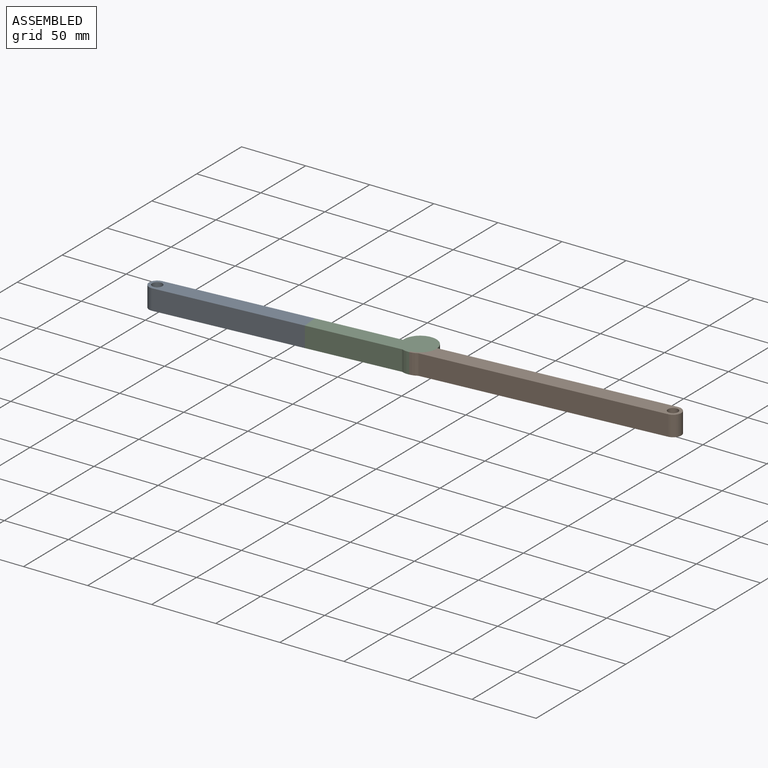
[diagram: assembled view]
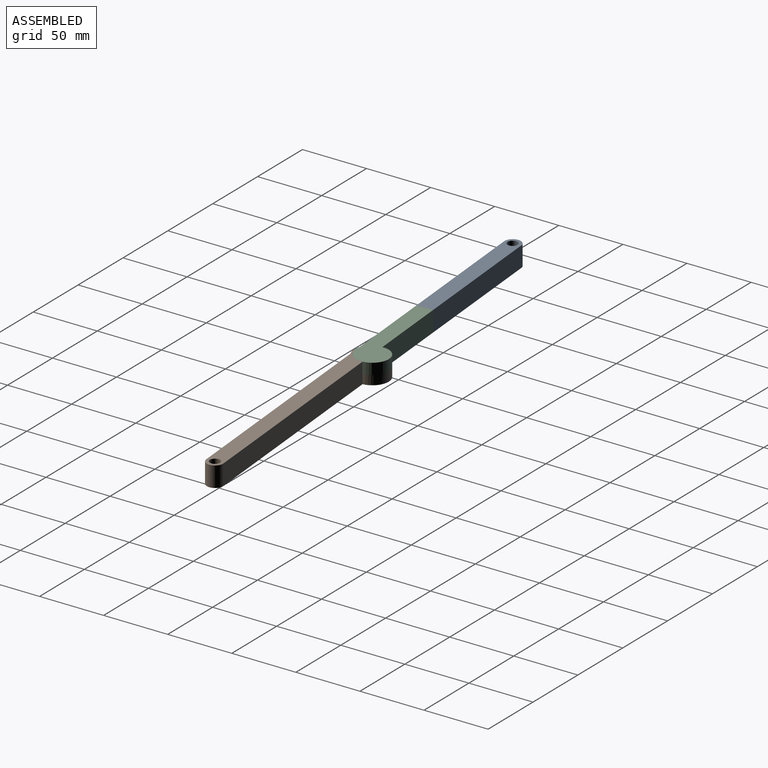
[diagram: assembled view, second angle]
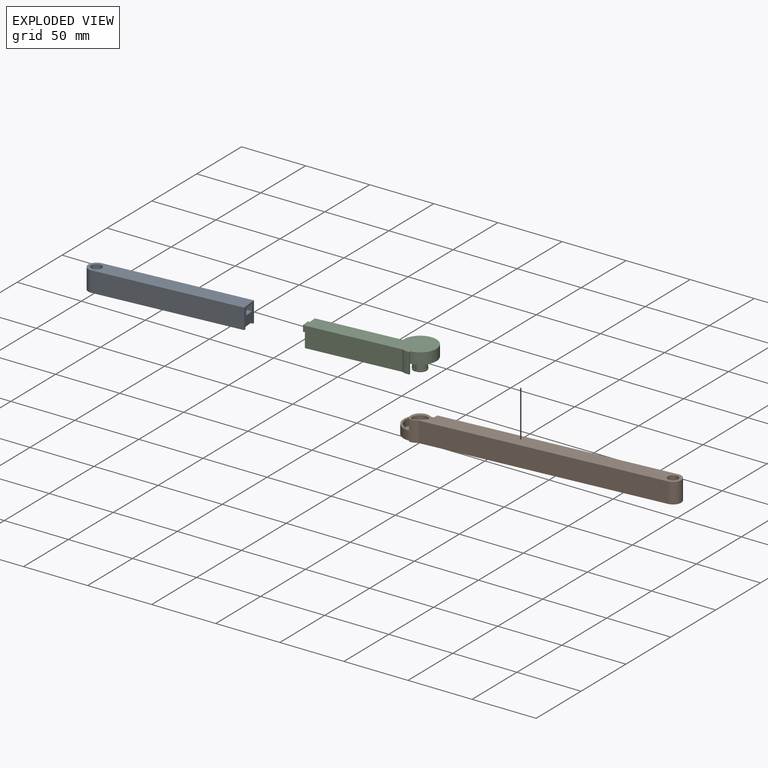
[diagram: exploded view]
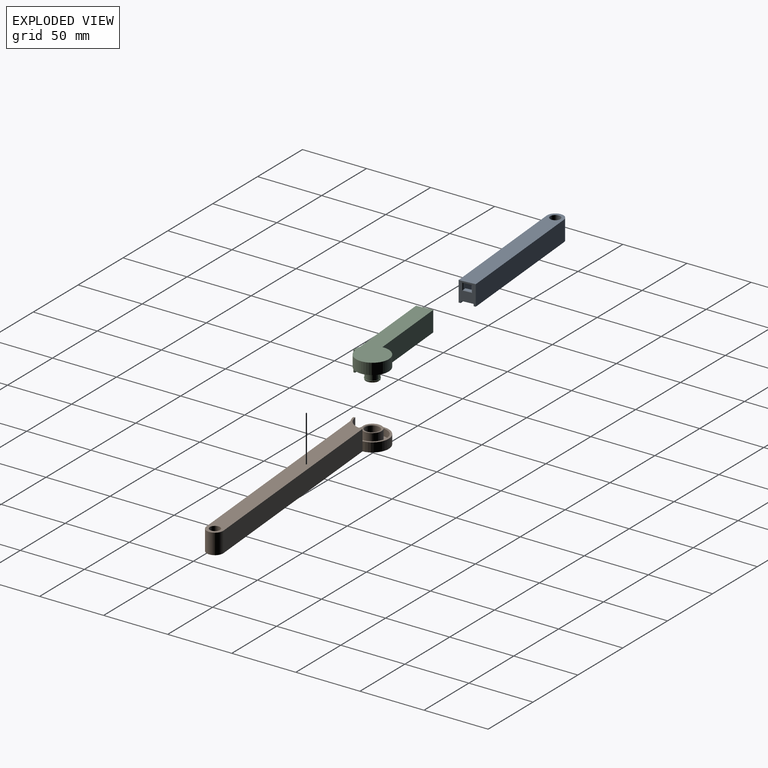
[diagram: exploded view, second angle]
ASSEMBLY  parts=3 mates=2
PART A: 33 faces, bbox 118.9x12.7x15.9 mm
  f0: plane 12.7x9.53mm, normal (1,0,0), area 90.7mm2, adj f1,f2,f19,f20,f26,f27,f28
  f1: plane 9.53x3.18mm, normal (0,0,-1), area 30.2mm2, adj f0,f2,f20,f25
  f2: plane 33.52x14.29mm, normal (0,1,0), area 438.6mm2, adj f0,f1,f18,f19,f24,f25
  f3: plane 7.94x7.94mm, normal (0,0,-1), area 49.5mm2, adj f4
  f4: cylinder r=3.97mm len=13.49mm, axis (0,0,-1), area 336.5mm2, adj f3,f11
  f5: plane 12.7x9.53mm, normal (1,0,0), area 121mm2, adj f8,f9,f12,f14
  f6: plane 33.78x9.53mm, normal (0,0,-1), area 303.6mm2, adj f7,f12,f13,f14
  f7: plane 12.7x9.53mm, normal (-1,0,0), area 121mm2, adj f6,f8,f12,f14
  f8: plane 9.53x1.6mm, normal (0,0,-1), area 15.2mm2, adj f5,f7,f12,f14
  f9: plane 33.76x9.53mm, normal (0,0,-1), area 307.4mm2, adj f5,f12,f14,f15
  f10: torus R=4.76mm, axis (0,0,1), area 33.4mm2, adj f16,f24
  f11: torus R=4.76mm, axis (0,0,1), area 33.4mm2, adj f4,f24
  f12: plane 69.14x14.29mm, normal (0,1,0), area 967.5mm2, adj f5,f6,f7,f8,f9,f13,f15,f24
  f13: cylinder r=5.56mm len=14.29mm, axis (0,0,-1), area 163.5mm2, adj f6,f12,f14,f24
  f14: plane 69.14x14.29mm, normal (0,-1,0), area 967.5mm2, adj f5,f6,f7,f8,f9,f13,f15,f24
  f15: cylinder r=6.35mm len=14.29mm, axis (0,0,-1), area 153.9mm2, adj f9,f12,f14,f24
  f16: cylinder r=3.97mm len=15.08mm, axis (0,0,-1), area 376.1mm2, adj f10,f21
  f17: cylinder r=6.35mm len=15.88mm, axis (0,0,-1), area 316.7mm2, adj f21,f22,f23,f24
  f18: cylinder r=5.56mm len=14.29mm, axis (0,0,-1), area 163.5mm2, adj f2,f19,f20,f24
  f19: plane 33.12x9.53mm, normal (0,0,-1), area 288.5mm2, adj f0,f2,f18,f20,f26,f28,f31
  f20: plane 33.52x14.29mm, normal (0,-1,0), area 438.6mm2, adj f0,f1,f18,f19,f24,f25
  f21: plane 118.93x12.7mm, normal (0,0,1), area 1443.6mm2, adj f16,f17,f22,f23,f25
  f22: plane 112.58x15.88mm, normal (0,1,0), area 1787.2mm2, adj f17,f21,f24,f25
  f23: plane 112.58x15.88mm, normal (0,-1,0), area 1787.2mm2, adj f17,f21,f24,f25
  f24: plane 118.93x12.7mm, normal (0,0,-1), area 423.3mm2, adj f2,f10,f11,f12,f13,f14,f15,f17
  f25: plane 15.88x12.7mm, normal (-1,0,0), area 146.8mm2, adj f1,f2,f20,f21,f22,f23,f24,f29
  f26: plane 4.76x2.78mm, normal (0,1,0), area 13.2mm2, adj f0,f19,f27,f32
  f27: plane 6.35x2.78mm, normal (0,0,1), area 17.6mm2, adj f0,f26,f28,f30
  f28: plane 4.76x2.78mm, normal (0,-1,0), area 13.2mm2, adj f0,f19,f27,f29
  f29: plane 5.56x0.4mm, normal (-0.71,-0.71,0), area 2.9mm2, adj f25,f28,f30,f31
  f30: plane 7.14x0.4mm, normal (-0.71,0,0.71), area 3.8mm2, adj f25,f27,f29,f32
  f31: plane 7.14x0.4mm, normal (-0.71,0,-0.71), area 3.8mm2, adj f19,f25,f29,f32
  f32: plane 5.56x0.4mm, normal (-0.71,0.71,0), area 2.9mm2, adj f25,f26,f30,f31
PART B: 47 faces, bbox 209.4x26.7x15.9 mm
  f0: cylinder r=5.56mm len=11.11mm, axis (0,0,-1), area 360.2mm2, adj f8,f43
  f1: cylinder r=12.7mm len=25.4mm, axis (0,0,-1), area 427.3mm2, adj f8,f10,f28,f38
  f2: plane 33.78x9.53mm, normal (0,0,-1), area 303.6mm2, adj f3,f22,f23,f36
  f3: plane 70.48x14.29mm, normal (0,1,0), area 986.6mm2, adj f2,f8,f23,f24,f25,f34,f35,f36
  f4: plane 33.78x9.53mm, normal (0,0,-1), area 303.6mm2, adj f5,f6,f17,f31
  f5: plane 69.14x14.29mm, normal (0,1,0), area 967.5mm2, adj f4,f7,f8,f17,f29,f31,f32,f33
  f6: plane 69.14x14.29mm, normal (0,-1,0), area 967.5mm2, adj f4,f7,f8,f17,f29,f31,f32,f33
  f7: plane 33.76x9.53mm, normal (0,0,-1), area 307.4mm2, adj f5,f6,f29,f32
  f8: plane 209.38x26.73mm, normal (0,0,-1), area 1093.5mm2, adj f0,f1,f3,f5,f6,f9,f10,f11
  f9: cylinder r=6.35mm len=15.88mm, axis (0,0,-1), area 316.7mm2, adj f8,f10,f11,f12
  f10: plane 177.63x15.88mm, normal (0,-1,0), area 2819.9mm2, adj f1,f8,f9,f12,f37
  f11: plane 184.31x15.88mm, normal (0,1,0), area 2925.9mm2, adj f8,f9,f12,f27
  f12: plane 196.68x14.06mm, normal (0,0,1), area 2309.6mm2, adj f9,f10,f11,f27,f28,f30,f37
  f13: cylinder r=3.97mm len=13.49mm, axis (0,0,-1), area 336.5mm2, adj f14,f45
  f14: plane 7.94x7.94mm, normal (0,0,-1), area 49.5mm2, adj f13
  f15: cylinder r=3.97mm len=13.49mm, axis (0,0,-1), area 336.5mm2, adj f16,f46
  f16: plane 7.94x7.94mm, normal (0,0,-1), area 49.5mm2, adj f15
  f17: cylinder r=5.56mm len=14.29mm, axis (0,0,-1), area 163.5mm2, adj f4,f5,f6,f8
  f18: cylinder r=5.56mm len=14.29mm, axis (0,0,-1), area 163.5mm2, adj f8,f19,f20,f21
  f19: plane 21.13x14.29mm, normal (0,1,0), area 301.8mm2, adj f8,f18,f21,f26
  f20: plane 26.47x14.29mm, normal (0,-1,0), area 378.1mm2, adj f8,f18,f21,f26
  f21: plane 26.47x9.53mm, normal (0,0,-1), area 200.4mm2, adj f18,f19,f20,f26
  f22: plane 70.48x14.29mm, normal (0,-1,0), area 986.6mm2, adj f2,f8,f23,f24,f25,f34,f35,f36
  f23: cylinder r=5.56mm len=14.29mm, axis (0,0,-1), area 163.5mm2, adj f2,f3,f8,f22
  f24: plane 35.09x9.53mm, normal (0,0,-1), area 316.1mm2, adj f3,f22,f25,f35
  f25: cylinder r=5.56mm len=14.29mm, axis (0,0,-1), area 163.5mm2, adj f3,f8,f22,f24
  f26: cylinder r=14.03mm len=14.29mm, axis (0,0,-1), area 160.3mm2, adj f8,f19,f20,f21
  f27: cylinder r=14.03mm len=15.88mm, axis (0,0,-1), area 98.9mm2, adj f8,f11,f12,f28
  f28: plane 15.88x1.33mm, normal (1,0,0), area 21.2mm2, adj f1,f8,f12,f27,f37
  f29: cylinder r=6.35mm len=14.29mm, axis (0,0,-1), area 153.9mm2, adj f5,f6,f7,f8
  f30: cylinder r=3.97mm len=15.08mm, axis (0,0,-1), area 376.1mm2, adj f12,f44
  f31: plane 12.7x9.53mm, normal (1,0,0), area 121mm2, adj f4,f5,f6,f33
  f32: plane 12.7x9.53mm, normal (-1,0,0), area 121mm2, adj f5,f6,f7,f33
  f33: plane 9.53x1.6mm, normal (0,0,-1), area 15.2mm2, adj f5,f6,f31,f32
  f34: plane 9.53x1.6mm, normal (0,0,-1), area 15.2mm2, adj f3,f22,f35,f36
  f35: plane 12.7x9.53mm, normal (-1,0,0), area 121mm2, adj f3,f22,f24,f34
  f36: plane 12.7x9.53mm, normal (1,0,0), area 121mm2, adj f2,f3,f22,f34
  f37: cylinder r=12.7mm len=12.73mm, axis (0,0,1), area 174.4mm2, adj f10,f12,f28,f38
  f38: plane 25.4x25.4mm, normal (0,0,1), area 118.8mm2, adj f1,f37,f41
  f39: plane 14.29x14.29mm, normal (0,0,1), area 33.6mm2, adj f40,f43
  f40: cylinder r=7.14mm len=14.29mm, axis (0,0,1), area 427.5mm2, adj f39,f42
  f41: cylinder r=11.11mm len=22.23mm, axis (0,0,1), area 387.9mm2, adj f38,f42
  f42: plane 22.23x22.23mm, normal (0,0,1), area 227.6mm2, adj f40,f41
  f43: torus R=6.35mm, axis (0,0,1), area 45.8mm2, adj f0,f39
  f44: torus R=4.76mm, axis (0,0,1), area 33.4mm2, adj f8,f30
  f45: torus R=4.76mm, axis (0,0,1), area 33.4mm2, adj f8,f13
  f46: torus R=4.76mm, axis (0,0,1), area 33.4mm2, adj f8,f15
PART C: 45 faces, bbox 93.6x26.7x17.5 mm
  f0: plane 15.88x12.7mm, normal (1,0,0), area 156.2mm2, adj f1,f2,f3,f4,f5,f6,f27,f41
  f1: plane 77.75x14.06mm, normal (0,0,-1), area 260.4mm2, adj f0,f2,f3,f4,f6,f19,f20,f21
  f2: plane 36.96x14.29mm, normal (0,1,0), area 487.7mm2, adj f0,f1,f16,f23,f27,f28
  f3: plane 65.05x15.88mm, normal (0,-1,0), area 1032.7mm2, adj f0,f1,f5,f15,f30
  f4: plane 71.73x15.88mm, normal (0,1,0), area 1138.6mm2, adj f0,f1,f5,f25
  f5: plane 90.45x26.73mm, normal (0,0,1), area 1372.6mm2, adj f0,f3,f4,f15,f25,f26
  f6: plane 36.96x14.29mm, normal (0,-1,0), area 487.7mm2, adj f0,f1,f16,f23,f27,f28
  f7: cylinder r=3.97mm len=15.88mm, axis (0,0,-1), area 179.7mm2, adj f10,f11,f33,f39
  f8: cylinder r=3.97mm len=15.88mm, axis (0,0,-1), area 185.3mm2, adj f13,f14,f33,f36
  f9: cylinder r=5.16mm len=14.68mm, axis (0,0,-1), area 221.2mm2, adj f10,f11,f33,f38
  f10: plane 15.88x1.52mm, normal (1,-0.04,0), area 19.2mm2, adj f7,f9,f33,f37,f38,f39
  f11: plane 15.88x1.52mm, normal (1,-0.04,0), area 19.2mm2, adj f7,f9,f33,f37,f38,f39
  f12: cylinder r=5.16mm len=14.68mm, axis (0,0,-1), area 226.3mm2, adj f13,f14,f33,f35
  f13: plane 15.88x1.52mm, normal (-1,0,0), area 19.2mm2, adj f8,f12,f33,f34,f35,f36
  f14: plane 15.88x1.52mm, normal (-1,0,0), area 19.2mm2, adj f8,f12,f33,f34,f35,f36
  f15: cylinder r=12.7mm len=25.4mm, axis (0,0,-1), area 522.3mm2, adj f3,f5,f26,f31
  f16: plane 33.78x9.53mm, normal (0,0,-1), area 303.6mm2, adj f2,f6,f23,f28
  f17: cylinder r=3.97mm len=13.49mm, axis (0,0,-1), area 336.5mm2, adj f18,f29
  f18: plane 7.94x7.94mm, normal (0,0,-1), area 49.5mm2, adj f17
  f19: cylinder r=5.56mm len=14.29mm, axis (0,0,-1), area 163.5mm2, adj f1,f20,f21,f22
  f20: plane 21.13x14.29mm, normal (0,1,0), area 301.8mm2, adj f1,f19,f22,f24
  f21: plane 26.47x14.29mm, normal (0,-1,0), area 378.1mm2, adj f1,f19,f22,f24
  f22: plane 26.47x9.53mm, normal (0,0,-1), area 200.4mm2, adj f19,f20,f21,f24
  f23: cylinder r=5.56mm len=14.29mm, axis (0,0,-1), area 163.5mm2, adj f1,f2,f6,f16
  f24: cylinder r=14.03mm len=14.29mm, axis (0,0,-1), area 160.3mm2, adj f1,f20,f21,f22
  f25: cylinder r=14.03mm len=15.88mm, axis (0,0,-1), area 98.9mm2, adj f1,f4,f5,f26
  f26: plane 15.88x1.33mm, normal (-1,0,0), area 21.2mm2, adj f1,f5,f15,f25,f30
  f27: plane 9.53x3.18mm, normal (0,0,-1), area 30.2mm2, adj f0,f2,f6,f28
  f28: plane 12.7x9.53mm, normal (-1,0,0), area 121mm2, adj f2,f6,f16,f27
  f29: torus R=4.76mm, axis (0,0,1), area 33.4mm2, adj f1,f17
  f30: cylinder r=12.7mm len=12.73mm, axis (0,0,-1), area 142.7mm2, adj f1,f3,f26,f31
  f31: plane 25.4x25.4mm, normal (0,0,-1), area 118.8mm2, adj f15,f30,f32
  f32: cylinder r=11.11mm len=22.23mm, axis (0,0,-1), area 498.8mm2, adj f31,f33
  f33: plane 22.23x22.23mm, normal (0,0,-1), area 356.1mm2, adj f7,f8,f9,f10,f11,f12,f13,f14
  f34: cone r=5.16mm half-angle=15deg, axis (0,0,1), area 19.6mm2, adj f13,f14,f35,f36
  f35: plane 10.93x5.08mm, normal (0,0,1), area 5.1mm2, adj f12,f13,f14,f34
  f36: plane 10.29x4.76mm, normal (0,0,-1), area 16.1mm2, adj f8,f13,f14,f34
  f37: cone r=5.16mm half-angle=15deg, axis (0,0,1), area 19.2mm2, adj f10,f11,f38,f39
  f38: plane 10.89x5.15mm, normal (0,0,1), area 5mm2, adj f9,f10,f11,f37
  f39: plane 10.24x4.82mm, normal (0,0,-1), area 15.7mm2, adj f7,f10,f11,f37
  f40: plane 6.35x4.76mm, normal (1,0,0), area 30.2mm2, adj f41,f42,f43,f44
  f41: plane 4.76x3.18mm, normal (0,1,0), area 15.1mm2, adj f0,f40,f42,f43
  f42: plane 6.35x3.18mm, normal (0,0,1), area 20.2mm2, adj f0,f40,f41,f44
  f43: plane 6.35x3.18mm, normal (0,0,-1), area 20.2mm2, adj f0,f40,f41,f44
  f44: plane 4.76x3.18mm, normal (0,-1,0), area 15.1mm2, adj f0,f40,f42,f43
PLACE A rot(axis=(0,0,-1),175deg) t=(266.14,16.46,27.64)mm
PLACE B rot(axis=(0,0,-1),175deg) t=(189.9,9.79,27.64)mm
PLACE C rot(axis=(0,0,-1),175deg) t=(266.14,16.46,27.64)mm
MATE revolute C.f7 <-> B.f0  axis (0,0,-1) through (-0.26,-0.5,34.79)mm
MATE fastened A.f25 <-> C.f0  axis (1,0.09,0) through (-77.17,-13.58,29.23)mm
